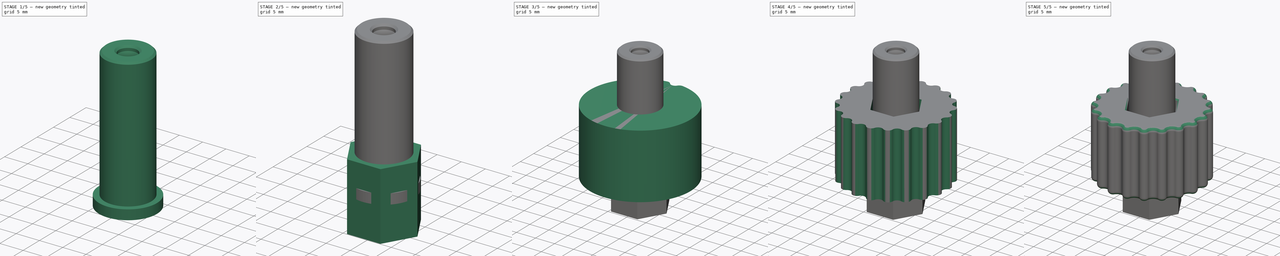
[diagram: build sequence overview — one tinted view per stage of 5, left to right]
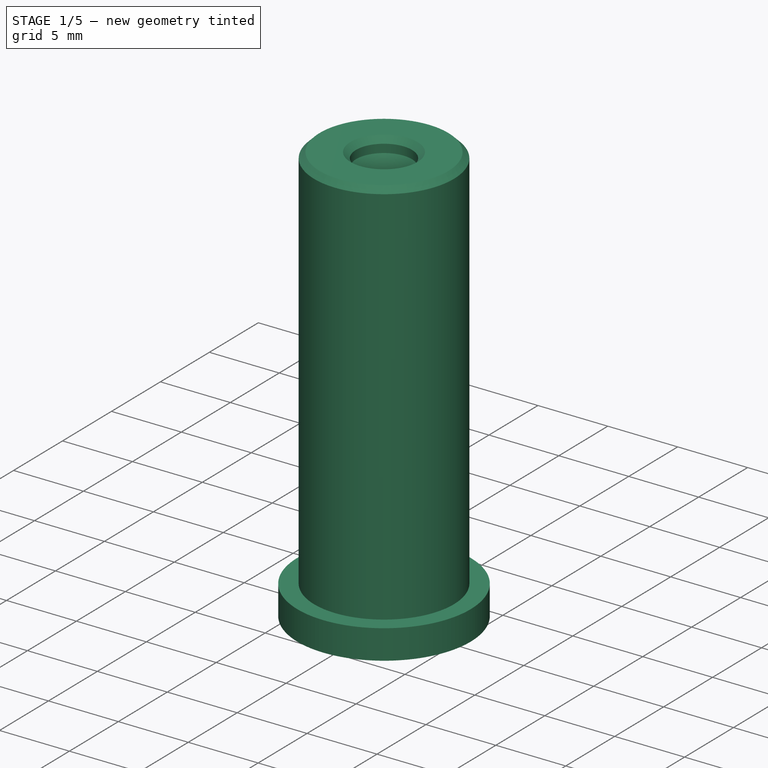
[diagram: stage 1 of 5 — iso view after this stage's code; geometry added in this stage tinted green]
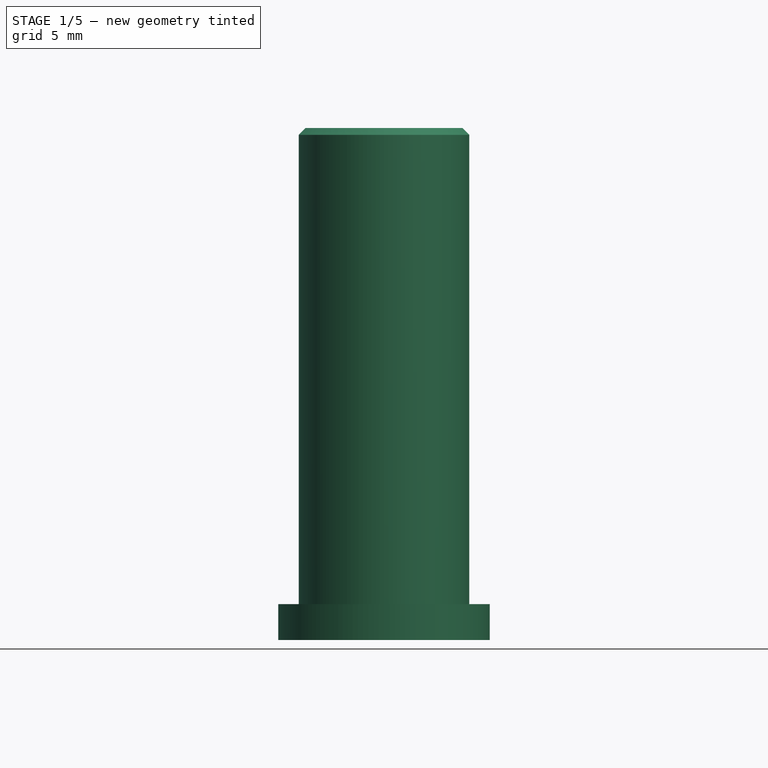
[diagram: stage 1 of 5 — front view after this stage's code; geometry added in this stage tinted green]
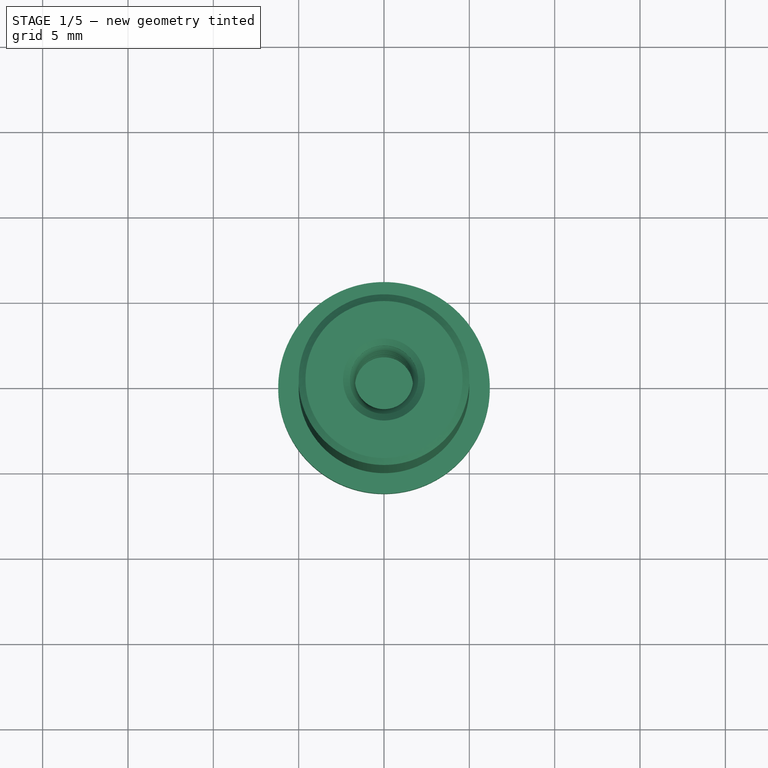
[diagram: stage 1 of 5 — top view after this stage's code; geometry added in this stage tinted green]
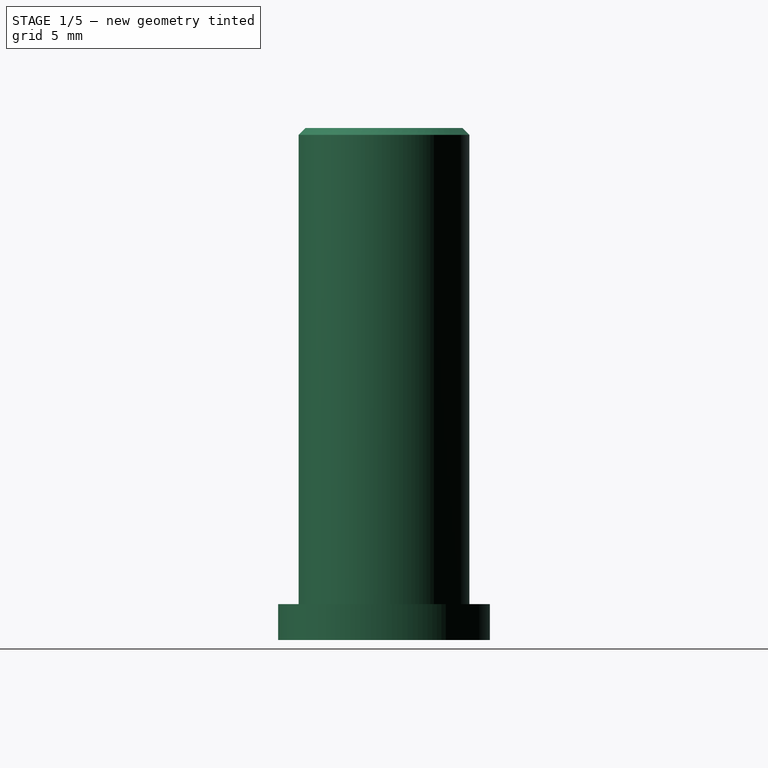
[diagram: stage 1 of 5 — right view after this stage's code; geometry added in this stage tinted green]
FCSTD DOCUMENT  (FreeCAD 0.21R33771 (Git))
Label: BowdenTerminal
License: All rights reserved
LicenseURL: http://en.wikipedia.org/wiki/All_rights_reserved
objects: Sketcher::SketchObject×13, PartDesign::Body×7, PartDesign::Revolution×5, PartDesign::Pad×4, PartDesign::Chamfer×4, PartDesign::Pocket×3, PartDesign::ShapeBinder×1, PartDesign::PolarPattern×1, PartDesign::Fillet×1
note: 56 computed .brp shape members not serialized (recipe doc carries the construction recipe); baked Part::Feature solids carry a one-line shape summary decoded from their .brp

FEATURE [PartDesign::Body] Body004  label="Joiner-M6-direct"
  Group = -> [Sketch008,Pad001,Sketch009,Chamfer001,Pad002,Sketch010,Pad003]
  Origin = -> Origin004
  Tip = -> Pad003
FEATURE [Sketcher::SketchObject] Sketch012
  FullyConstrained = true
  MapMode = 5
  Placement = pos=(0,0,0) rot=(0.57735,0.57735,0.57735;2.0944rad)
  Support = -> [YZ_Plane005]
  sketch-geometry (24):
    g0: LineSegment StartX=-2 StartY=30 StartZ=0 EndX=-5 EndY=30 EndZ=0
    g1: LineSegment StartX=-5 StartY=30 StartZ=0 EndX=-5 EndY=0 EndZ=0
    g2: LineSegment StartX=-5 StartY=0 StartZ=0 EndX=-2 EndY=0 EndZ=0
    g3: LineSegment StartX=-1.7 StartY=0 StartZ=0 EndX=-1.7 EndY=30 EndZ=0
    g4: LineSegment StartX=-2 StartY=0 StartZ=0 EndX=-2 EndY=1 EndZ=0
    g5: LineSegment StartX=-2 StartY=1 StartZ=0 EndX=-2 EndY=3.10713 EndZ=0
    g6: ArcOfCircle CenterX=-3.7 CenterY=2.05357 CenterZ=0 NormalX=0 NormalY=0 NormalZ=1 AngleXU=0 Radius=2 StartAngle=5.72837 EndAngle=6.838
    g7: LineSegment StartX=-5 StartY=15 StartZ=0 EndX=-1.7 EndY=15 EndZ=0
    g8: LineSegment StartX=-2 StartY=17.9253 StartZ=0 EndX=-2 EndY=12.0747 EndZ=0
    g9: ArcOfCircle CenterX=-3.7 CenterY=13.1282 CenterZ=0 NormalX=0 NormalY=0 NormalZ=1 AngleXU=0 Radius=2 StartAngle=5.72837 EndAngle=6.73421
    g10: LineSegment StartX=-1.9 StartY=14 StartZ=0 EndX=-1.9 EndY=16 EndZ=0
    g11: ArcOfCircle CenterX=-3.7 CenterY=16.8718 CenterZ=0 NormalX=0 NormalY=0 NormalZ=1 AngleXU=0 Radius=2 StartAngle=5.83216 EndAngle=6.838
    g12: LineSegment StartX=-1.7 StartY=16 StartZ=0 EndX=-2 EndY=16 EndZ=0
    g13: LineSegment StartX=-2 StartY=29 StartZ=0 EndX=-2 EndY=30 EndZ=0
    g14: LineSegment StartX=-2 StartY=26.8929 StartZ=0 EndX=-2 EndY=29 EndZ=0
    g15: ArcOfCircle CenterX=-3.7 CenterY=27.9464 CenterZ=0 NormalX=0 NormalY=0 NormalZ=1 AngleXU=0 Radius=2 StartAngle=5.72837 EndAngle=6.838
    g16: LineSegment StartX=-2 StartY=8.64446 StartZ=0 EndX=-2 EndY=12.0747 EndZ=0
    g17: LineSegment StartX=-2 StartY=3.10713 StartZ=0 EndX=-2 EndY=6.53733 EndZ=0
    g18: LineSegment StartX=-2 StartY=6.53733 StartZ=0 EndX=-2 EndY=8.64446 EndZ=0
    g19: ArcOfCircle CenterX=-3.7 CenterY=7.59089 CenterZ=0 NormalX=0 NormalY=0 NormalZ=1 AngleXU=0 Radius=2 StartAngle=5.72837 EndAngle=6.838
    g20: LineSegment StartX=-2 StartY=23.4627 StartZ=0 EndX=-2 EndY=26.8929 EndZ=0
    g21: LineSegment StartX=-2 StartY=17.9253 StartZ=0 EndX=-2 EndY=21.3555 EndZ=0
    g22: LineSegment StartX=-2 StartY=21.3555 StartZ=0 EndX=-2 EndY=23.4627 EndZ=0
    g23: ArcOfCircle CenterX=-3.7 CenterY=22.4091 CenterZ=0 NormalX=0 NormalY=0 NormalZ=1 AngleXU=0 Radius=2 StartAngle=5.72837 EndAngle=6.838
  constraints (74):
    c: Coincident(g0,g1)
    c: Coincident(g1,g2)
    c: Coincident(g2,g4)
    c: Coincident(g13,g0)
    c: Horizontal(g0)
    c: Horizontal(g2)
    c: Vertical(g1)
    c: DistanceX(g2,g-1) = 2
    c: DistanceX(g1,g-1) = 5
    c: DistanceY(g1,g1) = 30
    c: Vertical(g3)
    c: PointOnObject(g3,g0)
    c: PointOnObject(g3,g2)
    c: PointOnObject(g1,g-1)
    c: DistanceX(g2,g3) = 0.3
    c: Coincident(g4,g5)
    c: Vertical(g4)
    c: Coincident(g5,g17)
    c: Vertical(g5)
    c: Coincident(g6,g5)
    c: Coincident(g6,g4)
    c: Tangent(g6,g3)
    c: DistanceY(g4,g4) = 1
    c: Radius(g6) = 2
    c: PointOnObject(g7,g1)
    c: Horizontal(g7)
    c: Symmetric(g3,g3,g7)
    c: Coincident(g8,g21)
    c: Coincident(g8,g16)
    c: Vertical(g8)
    c: Coincident(g9,g16)
    c: Equal(g9,g6)
    c: Tangent(g9,g3)
    c: Coincident(g10,g9)
    c: Coincident(g11,g10)
    c: Coincident(g11,g21)
    c: Equal(g9,g11)
    c: Tangent(g11,g3)
    c: Symmetric(g9,g10,g7)
    c: DistanceY(g10,g10) = 2
    c: PointOnObject(g12,g3)
    c: PointOnObject(g12,g8)
    c: Horizontal(g12)
    c: Coincident(g14,g13)
    c: Vertical(g13)
    c: Coincident(g20,g14)
    c: Vertical(g14)
    c: Coincident(g15,g13)
    c: Coincident(g15,g20)
    c: Equal(g11,g15)
    c: Tangent(g15,g3)
    c: Equal(g13,g4)
    c: PointOnObject(g10,g12)
    c: DistanceX(g12,g10) = 0.1
    c: Coincident(g18,g16)
    c: Vertical(g16)
    c: Coincident(g17,g18)
    c: Vertical(g17)
    c: Vertical(g18)
    c: Coincident(g19,g16)
    c: Coincident(g19,g17)
    c: Tangent(g19,g3)
    c: Equal(g9,g19)
    c: Equal(g16,g17)
    c: Coincident(g22,g20)
    c: Vertical(g20)
    c: Coincident(g21,g22)
    c: Vertical(g21)
    c: Vertical(g22)
    c: Coincident(g23,g20)
    c: Coincident(g23,g21)
    c: Tangent(g23,g3)
    c: Equal(g15,g23)
    c: Equal(g20,g21)
FEATURE [PartDesign::Revolution] Revolution003
  Angle = 360
  Axis = (-2e-16,3e-16,1)
  Base = (0,0,0)
  Placement = pos=(0,0,0) rot=(0.57735,0.57735,0.57735;2.0944rad)
  Profile = -> Sketch012
  ReferenceAxis = -> Sketch012 [V_Axis]
FEATURE [PartDesign::Chamfer] Chamfer002
  Angle = 45
  Base = -> Revolution003 [Face3,Face1]
  BaseFeature = -> Revolution003
  ChamferType = 0
  FlipDirection = false
  Placement = pos=(0,0,0) rot=(0.57735,0.57735,0.57735;2.0944rad)
  Size = 0.4
  Size2 = 1
  SupportTransform = false
  UseAllEdges = false
FEATURE [PartDesign::Body] Body005  label="Joiner-tube-4mm"
  Group = -> [Sketch012,Revolution003,Chamfer002]
  Origin = -> Origin005
  Tip = -> Chamfer002
FEATURE [Sketcher::SketchObject] Sketch013
  FullyConstrained = true
  MapMode = 5
  Placement = pos=(0,0,0) rot=(0.57735,0.57735,0.57735;2.0944rad)
  Support = -> [YZ_Plane006]
  sketch-geometry (6):
    g0: LineSegment StartX=0 StartY=0 StartZ=0 EndX=-6.2 EndY=0 EndZ=0
    g1: LineSegment StartX=-6.2 StartY=0 StartZ=0 EndX=-6.2 EndY=2.1 EndZ=0
    g2: LineSegment StartX=-6.2 StartY=2.1 StartZ=0 EndX=-3.2 EndY=2.1 EndZ=0
    g3: LineSegment StartX=-3.2 StartY=2.1 StartZ=0 EndX=-3.2 EndY=7.1 EndZ=0
    g4: LineSegment StartX=-3.2 StartY=7.1 StartZ=0 EndX=0 EndY=7.1 EndZ=0
    g5: LineSegment StartX=0 StartY=7.1 StartZ=0 EndX=0 EndY=0 EndZ=0
  constraints (17):
    c: Horizontal(g0)
    c: Coincident(g0,g1)
    c: Vertical(g1)
    c: Coincident(g1,g2)
    c: Horizontal(g2)
    c: Coincident(g2,g3)
    c: Vertical(g3)
    c: Coincident(g3,g4)
    c: Horizontal(g4)
    c: Coincident(g4,g5)
    c: Coincident(g5,g0)
    c: Vertical(g5)
    c: DistanceX(g4,g4) = 3.2
    c: DistanceX(g1,g3) = 3
    c: DistanceY(g1,g1) = 2.1
    c: DistanceY(g1,g3) = 5
    c: Coincident(g0,g-1)
FEATURE [PartDesign::Revolution] Revolution004
  Angle = 360
  Axis = (-2e-16,3e-16,1)
  Base = (0,0,0)
  Placement = pos=(0,0,0) rot=(0.57735,0.57735,0.57735;2.0944rad)
  Profile = -> Sketch013
  ReferenceAxis = -> Sketch013 [V_Axis]
FEATURE [PartDesign::Chamfer] Chamfer003
  Angle = 45
  Base = -> Revolution004 [Face5]
  BaseFeature = -> Revolution004
  ChamferType = 0
  FlipDirection = false
  Placement = pos=(0,0,0) rot=(0.57735,0.57735,0.57735;2.0944rad)
  Size = 1
  Size2 = 1
  SupportTransform = false
  UseAllEdges = false
FEATURE [PartDesign::Body] Body006  label="Plug-6mm"
  Group = -> [Sketch013,Revolution004,Chamfer003]
  Origin = -> Origin006
  Tip = -> Chamfer003
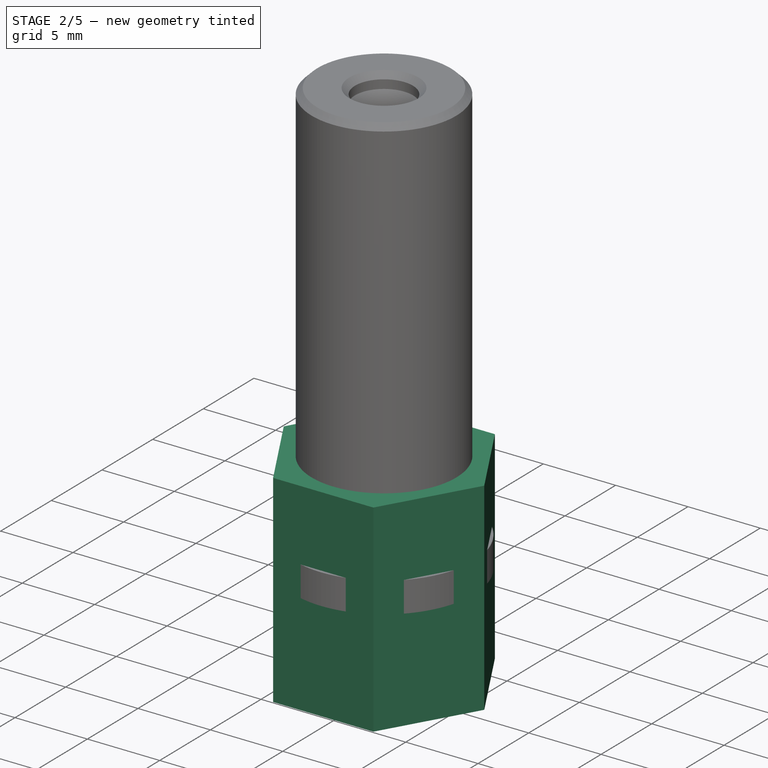
[diagram: stage 2 of 5 — iso view after this stage's code; geometry added in this stage tinted green]
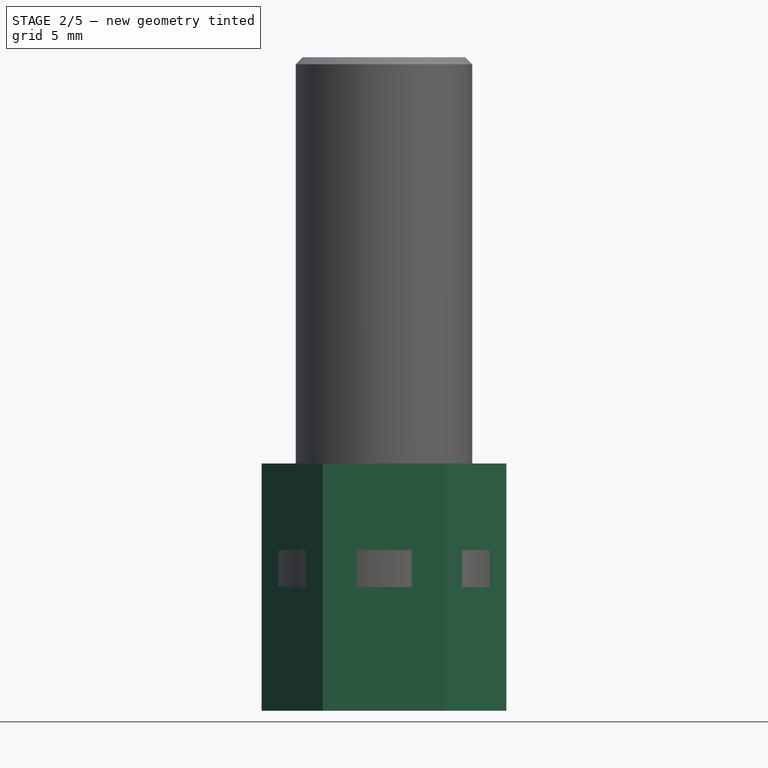
[diagram: stage 2 of 5 — front view after this stage's code; geometry added in this stage tinted green]
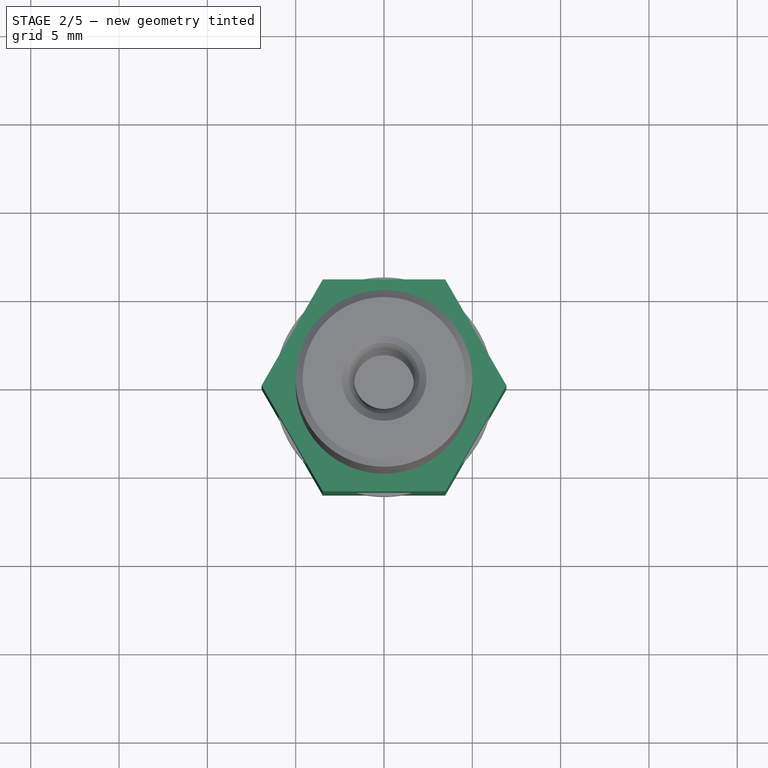
[diagram: stage 2 of 5 — top view after this stage's code; geometry added in this stage tinted green]
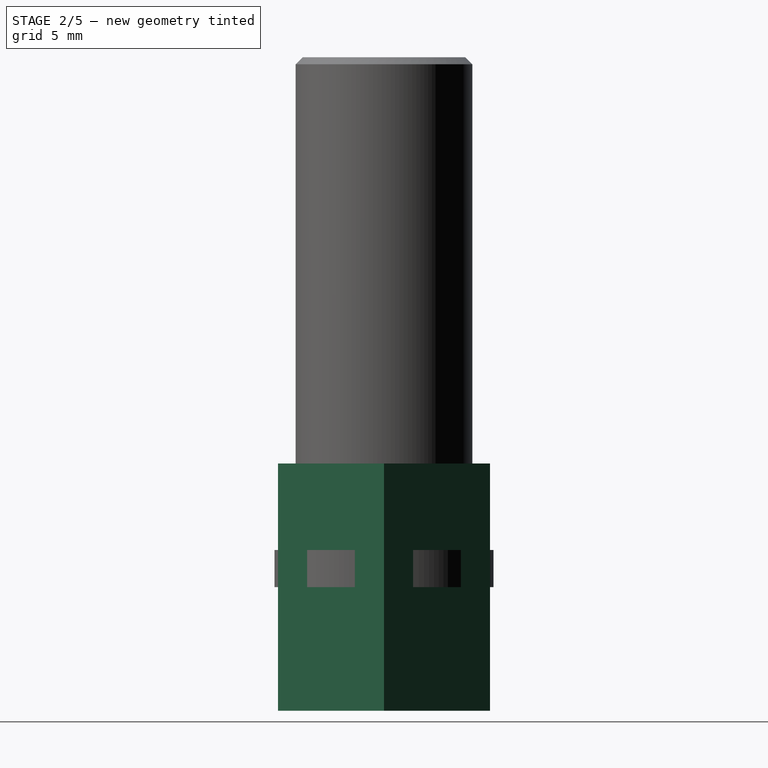
[diagram: stage 2 of 5 — right view after this stage's code; geometry added in this stage tinted green]
FEATURE [PartDesign::Body] Body001  label="M5-Insert"
  Group = -> [Sketch001,Revolution001]
  Origin = -> Origin001
  Tip = -> Revolution001
FEATURE [Sketcher::SketchObject] Sketch008
  FullyConstrained = true
  MapMode = 5
  Support = -> [XY_Plane004]
  sketch-geometry (8):
    g0: LineSegment StartX=3.4641 StartY=6 StartZ=0 EndX=-3.4641 EndY=6 EndZ=0
    g1: LineSegment StartX=-3.4641 StartY=6 StartZ=0 EndX=-6.9282 EndY=-1.74598e-11 EndZ=0
    g2: LineSegment StartX=-6.9282 StartY=-1.74598e-11 StartZ=0 EndX=-3.4641 EndY=-6 EndZ=0
    g3: LineSegment StartX=-3.4641 StartY=-6 StartZ=0 EndX=3.4641 EndY=-6 EndZ=0
    g4: LineSegment StartX=3.4641 StartY=-6 StartZ=0 EndX=6.9282 EndY=1.20428e-11 EndZ=0
    g5: LineSegment StartX=6.9282 StartY=1.20428e-11 StartZ=0 EndX=3.4641 EndY=6 EndZ=0
    g6: Circle CenterX=3.3758e-12 CenterY=-2.0107e-12 CenterZ=0 NormalX=0 NormalY=0 NormalZ=1 AngleXU=0 Radius=6.9282
    g7: Circle CenterX=3.3758e-12 CenterY=-2.0107e-12 CenterZ=0 NormalX=0 NormalY=0 NormalZ=1 AngleXU=0 Radius=3
  constraints (18):
    c: Coincident(g0,g1)
    c: Coincident(g1,g2)
    c: Coincident(g2,g3)
    c: Coincident(g3,g4)
    c: Coincident(g4,g5)
    c: Coincident(g5,g0)
    c: Equal(g0, g1-g5) x5
    c: PointOnObject(g0,g6)
    c: PointOnObject(g1,g6)
    c: PointOnObject(g2,g6)
    c: PointOnObject(g3,g6)
    c: PointOnObject(g4,g6)
    c: PointOnObject(g5,g6)
    c: Coincident(g6,g-1)
    c: Horizontal(g0)
    c: Coincident(g7,g6)
    c: Radius(g7) = 3
    c: DistanceY(g3,g0) = 12
FEATURE [PartDesign::Pad] Pad001
  Direction = (0,0,1)
  Length = 14
  Length2 = 10
  Midplane = true
  Profile = -> Sketch008
  ReferenceAxis = -> Sketch008 [N_Axis]
  Type = 0
FEATURE [Sketcher::SketchObject] Sketch009
  FullyConstrained = true
  MapMode = 5
  Support = -> [XY_Plane004]
  sketch-geometry (2):
    g0: Circle CenterX=0 CenterY=0 CenterZ=0 NormalX=0 NormalY=0 NormalZ=1 AngleXU=0 Radius=2.3
    g1: Circle CenterX=0 CenterY=0 CenterZ=0 NormalX=0 NormalY=0 NormalZ=1 AngleXU=0 Radius=3
  constraints (4):
    c: Coincident(g0,g-1)
    c: Coincident(g1,g0)
    c: Radius(g0) = 2.3
    c: Radius(g1) = 3
FEATURE [PartDesign::Chamfer] Chamfer001
  Angle = 45
  Base = -> Pad001 [Edge21,Edge20]
  BaseFeature = -> Pad001
  ChamferType = 0
  FlipDirection = false
  Size = 0.8
  Size2 = 1
  SupportTransform = false
  UseAllEdges = false
FEATURE [PartDesign::Pad] Pad002
  BaseFeature = -> Chamfer001
  Direction = (0,0,1)
  Length = 4
  Length2 = 10
  Midplane = true
  Profile = -> Sketch009
  ReferenceAxis = -> Sketch009 [N_Axis]
  Type = 0
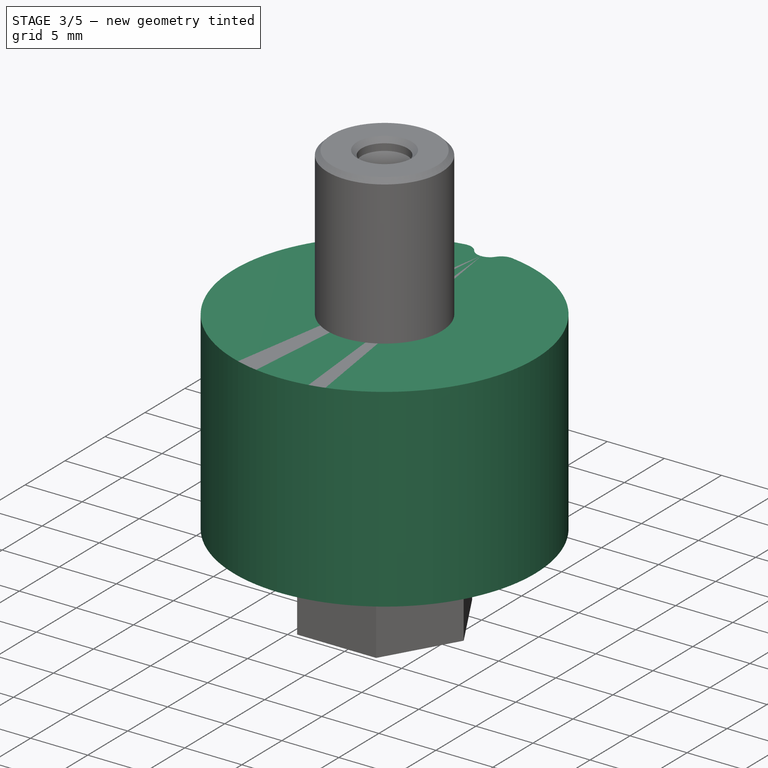
[diagram: stage 3 of 5 — iso view after this stage's code; geometry added in this stage tinted green]
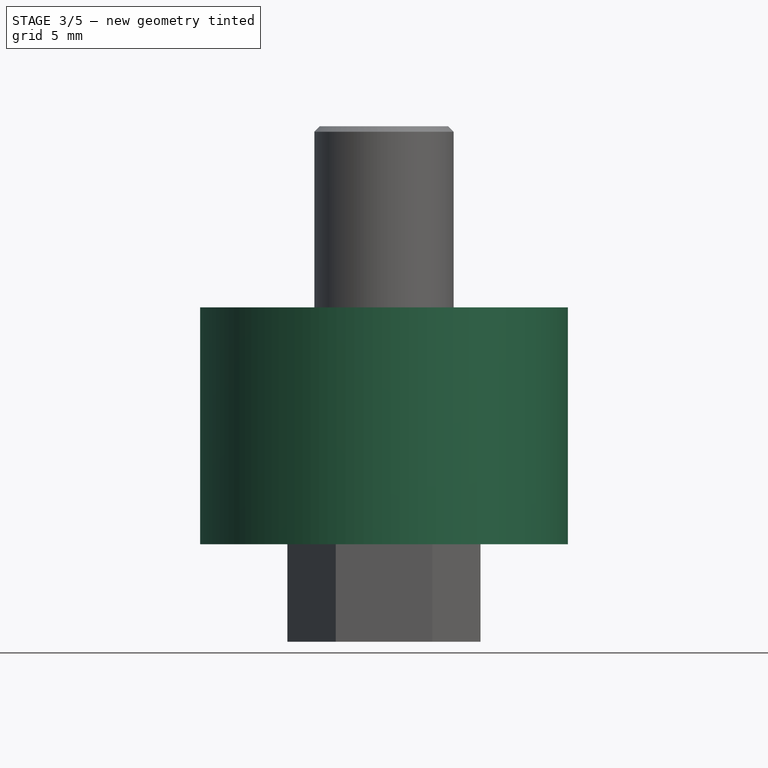
[diagram: stage 3 of 5 — front view after this stage's code; geometry added in this stage tinted green]
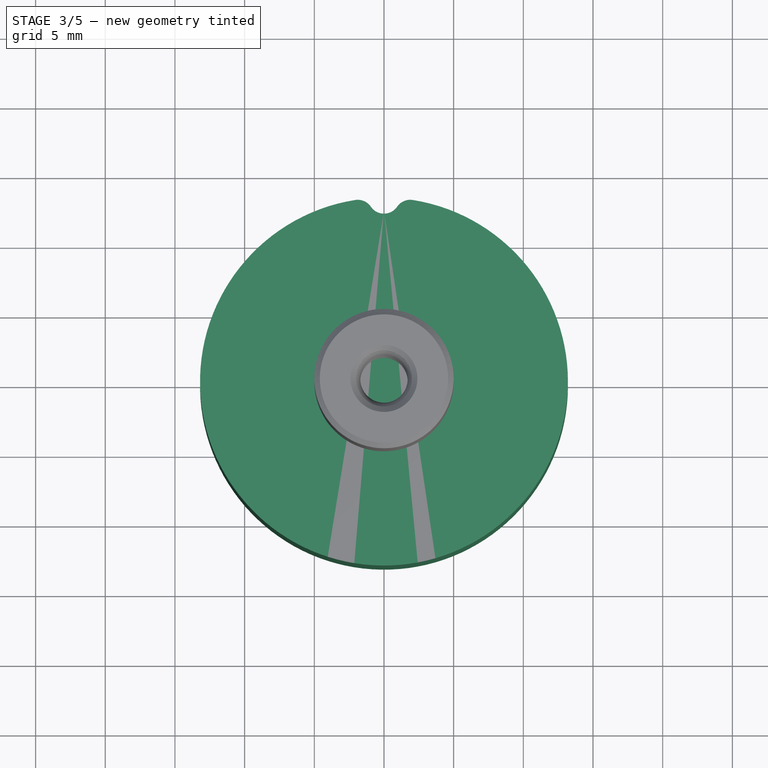
[diagram: stage 3 of 5 — top view after this stage's code; geometry added in this stage tinted green]
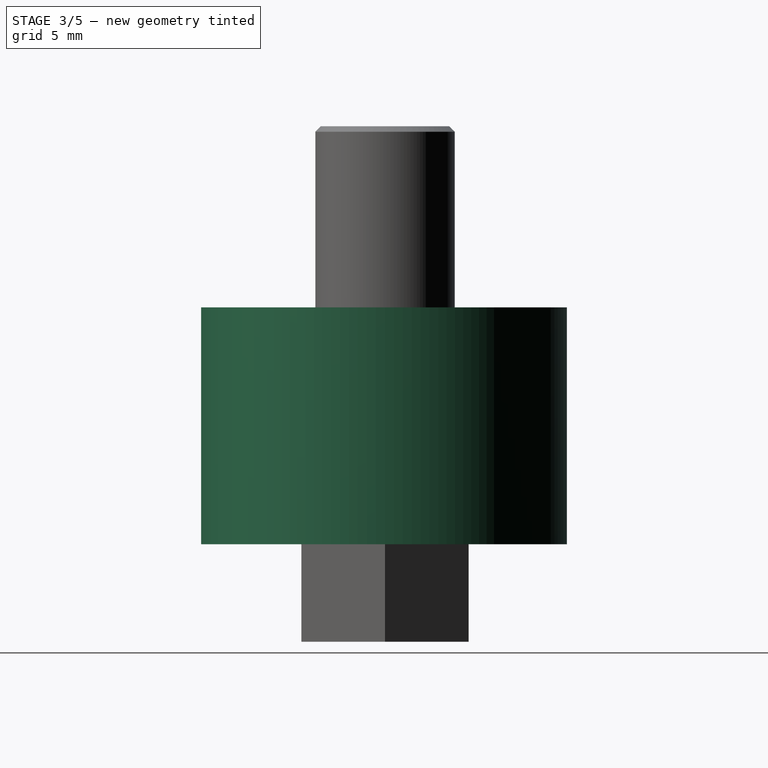
[diagram: stage 3 of 5 — right view after this stage's code; geometry added in this stage tinted green]
FEATURE [PartDesign::Body] Body002  label="M6-Direct"
  Group = -> [Sketch002,Revolution002]
  Origin = -> Origin002
  Tip = -> Revolution002
FEATURE [PartDesign::ShapeBinder] ShapeBinder
  Placement = pos=(0,0,0) rot=(1,0,0;1.5708rad)
  Support = -> [Sketch]
  TraceSupport = false
FEATURE [Sketcher::SketchObject] Sketch003  label="T_Template"
  ExternalGeometry = -> [ShapeBinder]
  FullyConstrained = true
  MapMode = 5
  Support = -> [XY_Plane003]
  sketch-geometry (11):
    g0: Circle CenterX=-7.649e-13 CenterY=3.192e-13 CenterZ=0 NormalX=0 NormalY=0 NormalZ=1 AngleXU=0 Radius=8.2
    g1: LineSegment StartX=-7.9 StartY=-2.9e-15 StartZ=0 EndX=-8.2 EndY=-2.9e-15 EndZ=0
    g2: Circle CenterX=-7.649e-13 CenterY=3.192e-13 CenterZ=0 NormalX=0 NormalY=0 NormalZ=1 AngleXU=0 Radius=13.2
    g3: LineSegment StartX=-8.2 StartY=-2.9e-15 StartZ=0 EndX=-13.2 EndY=-2.9e-15 EndZ=0
    g4: LineSegment StartX=3.03109 StartY=5.25 StartZ=0 EndX=-3.03109 EndY=5.25 EndZ=0
    g5: LineSegment StartX=-3.03109 StartY=5.25 StartZ=0 EndX=-6.06218 EndY=2.8999e-12 EndZ=0
    g6: LineSegment StartX=-6.06218 StartY=2.8999e-12 StartZ=0 EndX=-3.03109 EndY=-5.25 EndZ=0
    g7: LineSegment StartX=-3.03109 StartY=-5.25 StartZ=0 EndX=3.03109 EndY=-5.25 EndZ=0
    g8: LineSegment StartX=3.03109 StartY=-5.25 StartZ=0 EndX=6.06218 EndY=-2.0437e-12 EndZ=0
    g9: LineSegment StartX=6.06218 StartY=-2.0437e-12 StartZ=0 EndX=3.03109 EndY=5.25 EndZ=0
    g10: Circle CenterX=-7.649e-13 CenterY=3.192e-13 CenterZ=0 NormalX=0 NormalY=0 NormalZ=1 AngleXU=0 Radius=6.06218
  constraints (26):
    c: Coincident(g0,g-1)
    c: Coincident(g1,g-3)
    c: PointOnObject(g1,g0)
    c: Horizontal(g1)
    c: DistanceX(g1,g1) = 0.3
    c: Coincident(g2,g0)
    c: Coincident(g3,g1)
    c: PointOnObject(g3,g2)
    c: Horizontal(g3)
    c: DistanceX(g3,g3) = 5
    c: Coincident(g4,g5)
    c: Coincident(g5,g6)
    c: Coincident(g6,g7)
    c: Coincident(g7,g8)
    c: Coincident(g8,g9)
    c: Coincident(g9,g4)
    c: Equal(g4, g5-g9) x5
    c: PointOnObject(g4,g10)
    c: PointOnObject(g5,g10)
    c: PointOnObject(g6,g10)
    c: PointOnObject(g7,g10)
    c: PointOnObject(g8,g10)
    c: PointOnObject(g9,g10)
    c: Coincident(g10,g0)
    c: DistanceY(g7,g4) = 10.5
    c: Horizontal(g4)
FEATURE [Sketcher::SketchObject] Sketch004
  ExternalGeometry = -> [Sketch003]
  FullyConstrained = true
  MapMode = 5
  Support = -> [XY_Plane003]
  sketch-geometry (1):
    g0: Circle CenterX=0 CenterY=0 CenterZ=0 NormalX=0 NormalY=0 NormalZ=1 AngleXU=0 Radius=13.2
  constraints (2):
    c: Coincident(g0,g-3)
    c: Equal(g0,g-3)
FEATURE [PartDesign::Pad] Pad
  Direction = (0,0,1)
  Length = 17
  Length2 = 10
  Profile = -> Sketch004
  ReferenceAxis = -> Sketch004 [N_Axis]
  Type = 0
FEATURE [Sketcher::SketchObject] Sketch005
  AttachmentOffset = pos=(0,0,4) rot=(0,0,1;0rad)
  ExternalGeometry = -> [Sketch003]
  FullyConstrained = true
  MapMode = 5
  Placement = pos=(0,0,4) rot=(0,0,1;0rad)
  Support = -> [XY_Plane003]
  sketch-geometry (1):
    g0: Circle CenterX=0 CenterY=0 CenterZ=0 NormalX=0 NormalY=0 NormalZ=1 AngleXU=0 Radius=8.2
  constraints (2):
    c: Coincident(g0,g-3)
    c: Equal(g-3,g0)
FEATURE [Sketcher::SketchObject] Sketch006
  AttachmentOffset = pos=(0,0,17) rot=(0,0,1;0rad)
  ExternalGeometry = -> [Sketch003]
  FullyConstrained = true
  MapMode = 5
  Placement = pos=(0,0,17) rot=(0,0,1;0rad)
  Support = -> [XY_Plane003]
  expr: .AttachmentOffset.Base.z = <<Pad>>.Length
  sketch-geometry (7):
    g0: LineSegment StartX=3.03109 StartY=5.25 StartZ=0 EndX=-3.03109 EndY=5.25 EndZ=0
    g1: LineSegment StartX=-3.03109 StartY=5.25 StartZ=0 EndX=-6.06218 EndY=9.344e-13 EndZ=0
    g2: LineSegment StartX=-6.06218 StartY=9.344e-13 StartZ=0 EndX=-3.03109 EndY=-5.25 EndZ=0
    g3: LineSegment StartX=-3.03109 StartY=-5.25 StartZ=0 EndX=3.03109 EndY=-5.25 EndZ=0
    g4: LineSegment StartX=3.03109 StartY=-5.25 StartZ=0 EndX=6.06218 EndY=-6.146e-13 EndZ=0
    g5: LineSegment StartX=6.06218 StartY=-6.146e-13 StartZ=0 EndX=3.03109 EndY=5.25 EndZ=0
    g6: Circle CenterX=7.15e-14 CenterY=1.166e-13 CenterZ=0 NormalX=0 NormalY=0 NormalZ=1 AngleXU=0 Radius=6.06218
  constraints (15):
    c: Coincident(g0,g1)
    c: Coincident(g1,g2)
    c: Coincident(g2,g3)
    c: Coincident(g3,g4)
    c: Coincident(g4,g5)
    c: Coincident(g5,g0)
    c: Equal(g0, g1-g5) x5
    c: PointOnObject(g0,g6)
    c: PointOnObject(g1,g6)
    c: PointOnObject(g2,g6)
    c: PointOnObject(g3,g6)
    c: PointOnObject(g4,g6)
    c: PointOnObject(g5,g6)
    c: Coincident(g6,g-1)
    c: Coincident(g5,g-3)
FEATURE [Sketcher::SketchObject] Sketch007
  AttachmentOffset = pos=(0,0,17) rot=(0,0,1;0rad)
  ExternalGeometry = -> [Sketch003]
  FullyConstrained = true
  MapMode = 5
  Placement = pos=(0,0,17) rot=(0,0,1;0rad)
  Support = -> [XY_Plane003]
  expr: .AttachmentOffset.Base.z = <<Pad>>.Length
  expr: Constraints[15] = 360 / 20
  sketch-geometry (6):
    g0: ArcOfCircle CenterX=0 CenterY=13.2 CenterZ=0 NormalX=0 NormalY=0 NormalZ=1 AngleXU=0 Radius=1.14293 StartAngle=3.74195 EndAngle=5.68283
    g1: ArcOfCircle CenterX=-1.88614 CenterY=11.9086 CenterZ=0 NormalX=0 NormalY=0 NormalZ=1 AngleXU=0 Radius=1.14293 StartAngle=0.60036 EndAngle=1.72788
    g2: ArcOfCircle CenterX=1.88614 CenterY=11.9086 CenterZ=0 NormalX=0 NormalY=0 NormalZ=1 AngleXU=0 Radius=1.14293 StartAngle=1.41372 EndAngle=2.54123
    g3: ArcOfCircle CenterX=-6.55e-14 CenterY=12.0571 CenterZ=0 NormalX=0 NormalY=0 NormalZ=1 AngleXU=0 Radius=2.28586 StartAngle=0.44328 EndAngle=2.69831
    g4: LineSegment StartX=-2.06493 StartY=13.0375 StartZ=0 EndX=-7.647e-13 EndY=2.002e-12 EndZ=0
    g5: LineSegment StartX=-7.647e-13 StartY=2.002e-12 StartZ=0 EndX=2.06493 EndY=13.0375 EndZ=0
  constraints (16):
    c: PointOnObject(g0,g-2)
    c: PointOnObject(g0,g-3)
    c: Tangent(g0,g1) = 1.5708
    c: Tangent(g0,g2) = 1.5708
    c: Equal(g2,g1)
    c: Tangent(g1,g-3) = -1.5708
    c: Tangent(g2,g-3) = -1.5708
    c: PointOnObject(g3,g0)
    c: Coincident(g3,g1)
    c: Coincident(g3,g2)
    c: Equal(g0,g1)
    c: Coincident(g4,g1)
    c: Coincident(g4,g-3)
    c: Coincident(g5,g4)
    c: Coincident(g5,g2)
    c: Angle(g5,g4) = 0.314159
FEATURE [PartDesign::Pocket] Pocket002
  BaseFeature = -> Pad
  Direction = (0,0,-1)
  Length = 5
  Length2 = 5
  Profile = -> Sketch007
  ReferenceAxis = -> Sketch007 [N_Axis]
  Type = 1
FEATURE [PartDesign::Body] Body003  label="Tool"
  Group = -> [ShapeBinder,Sketch003,Sketch004,Pad,Sketch005,Sketch007,Pocket002,PolarPattern,Pocket,Sketch006,Pocket001,Fillet,Chamfer]
  Origin = -> Origin003
  Tip = -> Chamfer
FEATURE [Sketcher::SketchObject] Sketch001
  FullyConstrained = true
  MapMode = 5
  Placement = pos=(0,0,0) rot=(1,0,0;1.5708rad)
  Support = -> [XZ_Plane001]
  sketch-geometry (12):
    g0: LineSegment StartX=-3 StartY=-4.4e-15 StartZ=0 EndX=-7.9 EndY=4.29e-14 EndZ=0
    g1: LineSegment StartX=-7.9 StartY=4.29e-14 StartZ=0 EndX=-7.9 EndY=4 EndZ=0
    g2: LineSegment StartX=-7.9 StartY=4 StartZ=0 EndX=-5.95 EndY=4 EndZ=0
    g3: LineSegment StartX=-5.95 StartY=4 StartZ=0 EndX=-5.95 EndY=10.1 EndZ=0
    g4: LineSegment StartX=-5.95 StartY=10.1 StartZ=0 EndX=-7.9 EndY=10.1 EndZ=0
    g5: LineSegment StartX=-7.9 StartY=10.1 StartZ=0 EndX=-7.9 EndY=13 EndZ=0
    g6: LineSegment StartX=-7.9 StartY=13 StartZ=0 EndX=-3.1 EndY=13 EndZ=0
    g7: LineSegment StartX=-3.1 StartY=13 StartZ=0 EndX=-3.1 EndY=6.5 EndZ=0
    g8: LineSegment StartX=-3.1 StartY=6.5 StartZ=0 EndX=-1.25 EndY=6.5 EndZ=0
    g9: LineSegment StartX=-1.25 StartY=6.5 StartZ=0 EndX=-1.25 EndY=4.7 EndZ=0
    g10: LineSegment StartX=-1.49246 StartY=3.5185 StartZ=0 EndX=-3 EndY=-4.4e-15 EndZ=0
    g11: ArcOfCircle CenterX=-4.25 CenterY=4.7 CenterZ=0 NormalX=0 NormalY=0 NormalZ=1 AngleXU=0 Radius=3 StartAngle=5.87839 EndAngle=6.28319
  constraints (35):
    c: PointOnObject(g0,g-1)
    c: PointOnObject(g0,g-1)
    c: Coincident(g1,g0)
    c: Vertical(g1)
    c: Coincident(g2,g1)
    c: Horizontal(g2)
    c: Coincident(g3,g2)
    c: Vertical(g3)
    c: Coincident(g4,g3)
    c: Horizontal(g4)
    c: Coincident(g5,g4)
    c: Vertical(g5)
    c: Coincident(g6,g5)
    c: Horizontal(g6)
    c: Coincident(g7,g6)
    c: Vertical(g7)
    c: Coincident(g8,g7)
    c: Horizontal(g8)
    c: Coincident(g9,g8)
    c: Coincident(g10,g0)
    c: PointOnObject(g4,g1)
    c: DistanceX(g0,g-1) = 7.9
    c: DistanceY(g1,g1) = 4
    c: DistanceY(g1,g4) = 6.1
    c: DistanceY(g5,g5) = 2.9
    c: DistanceX(g6,g-1) = 3.1
    c: DistanceY(g8,g6) = 6.5
    c: DistanceX(g2,g-1) = 5.95
    c: Vertical(g9)
    c: DistanceX(g8,g-1) = 1.25
    c: DistanceX(g0,g-1) = 3
    c: Tangent(g9,g11) = 1.5708
    c: Tangent(g10,g11) = 1.5708
    c: Radius(g11) = 3
    c: DistanceY(g9,g8) = 1.8
FEATURE [PartDesign::Revolution] Revolution001
  Angle = 360
  Axis = (0,-2e-16,1)
  Base = (0,0,0)
  Placement = pos=(0,0,0) rot=(1,0,0;1.5708rad)
  Profile = -> Sketch001
  ReferenceAxis = -> Sketch001 [V_Axis]
FEATURE [Sketcher::SketchObject] Sketch010
  AttachmentOffset = pos=(0,0,-2) rot=(0,0,1;0rad)
  FullyConstrained = true
  MapMode = 5
  Placement = pos=(0,0,-2) rot=(0,0,1;0rad)
  Support = -> [XY_Plane004]
  sketch-geometry (1):
    g0: Circle CenterX=0 CenterY=0 CenterZ=0 NormalX=0 NormalY=0 NormalZ=1 AngleXU=0 Radius=3
  constraints (2):
    c: Coincident(g0,g-1)
    c: Radius(g0) = 3
FEATURE [PartDesign::Pad] Pad003
  BaseFeature = -> Pad002
  Direction = (0,0,1)
  Length = 0.15
  Length2 = 10
  Profile = -> Sketch010
  ReferenceAxis = -> Sketch010 [N_Axis]
  Type = 0
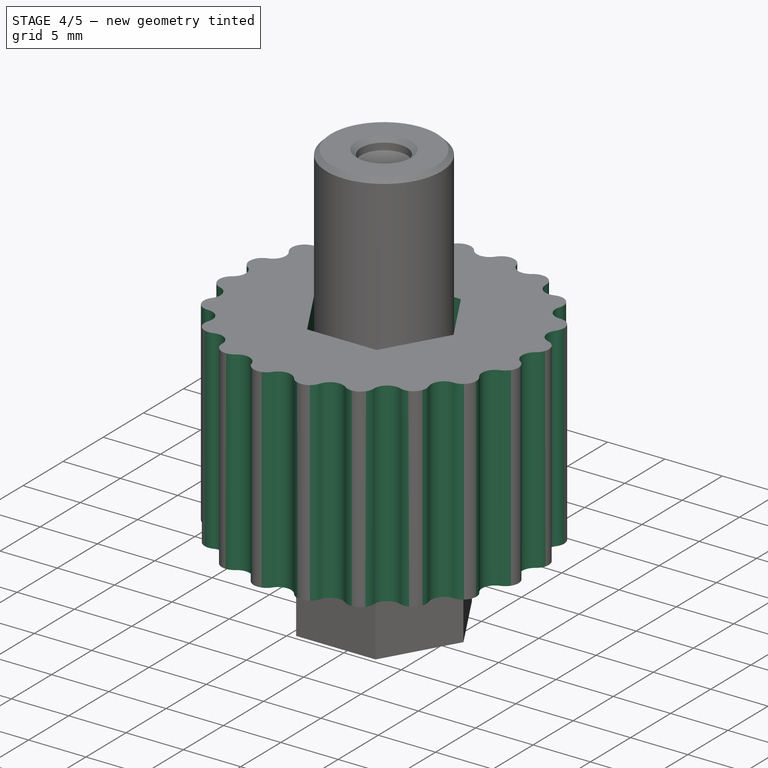
[diagram: stage 4 of 5 — iso view after this stage's code; geometry added in this stage tinted green]
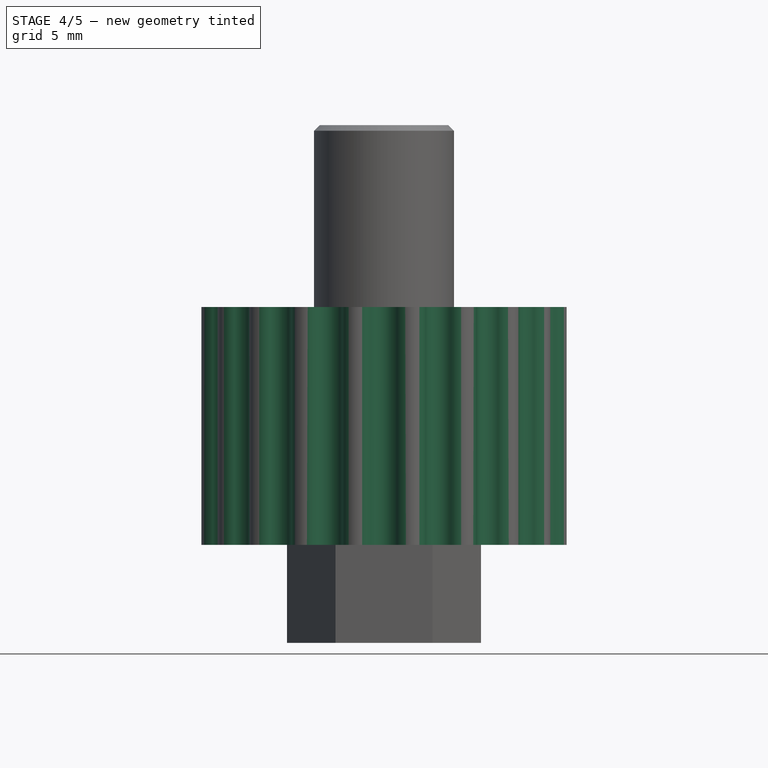
[diagram: stage 4 of 5 — front view after this stage's code; geometry added in this stage tinted green]
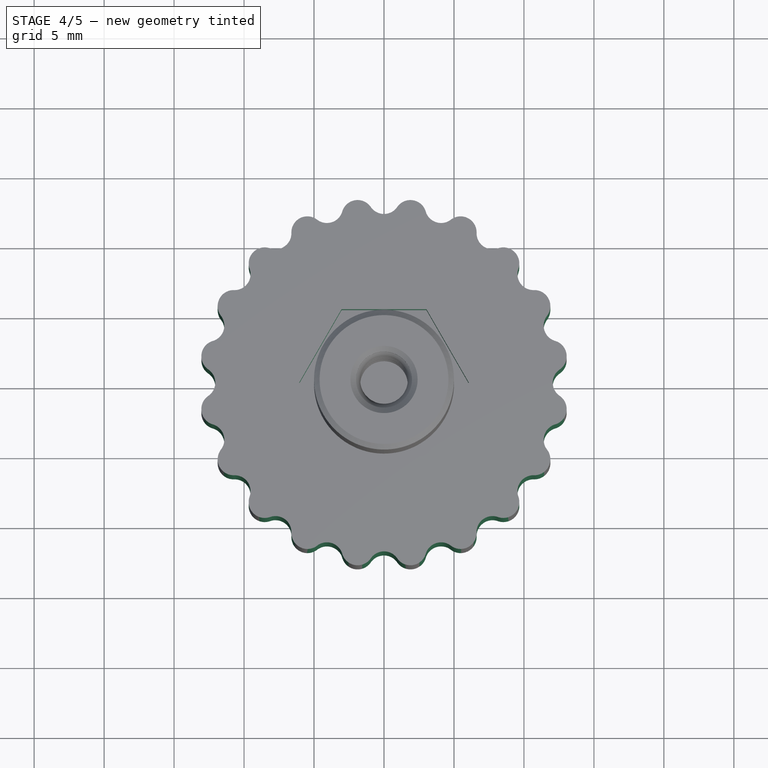
[diagram: stage 4 of 5 — top view after this stage's code; geometry added in this stage tinted green]
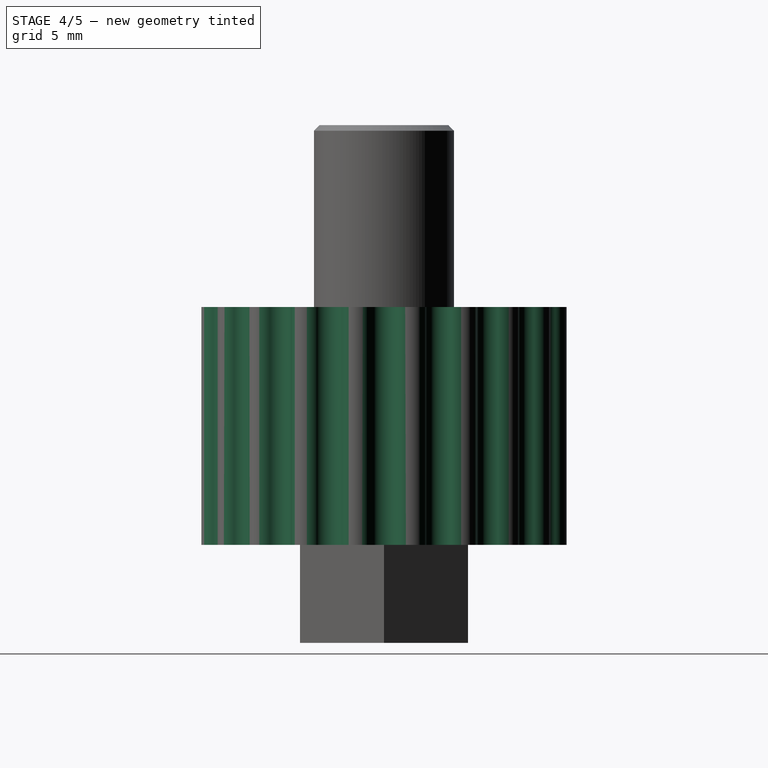
[diagram: stage 4 of 5 — right view after this stage's code; geometry added in this stage tinted green]
FEATURE [PartDesign::PolarPattern] PolarPattern
  Angle = 360
  Axis = -> Sketch007 [N_Axis]
  BaseFeature = -> Pocket002
  Occurrences = 20
  Originals = -> [Pocket002]
FEATURE [PartDesign::Pocket] Pocket
  BaseFeature = -> PolarPattern
  Direction = (0,0,-1)
  Length = 5
  Length2 = 5
  Profile = -> Sketch005
  ReferenceAxis = -> Sketch005 [N_Axis]
  Type = 1
FEATURE [PartDesign::Pocket] Pocket001
  BaseFeature = -> Pocket
  Direction = (0,0,-1)
  Length = 5
  Length2 = 5
  Profile = -> Sketch006
  ReferenceAxis = -> Sketch006 [N_Axis]
  Type = 1
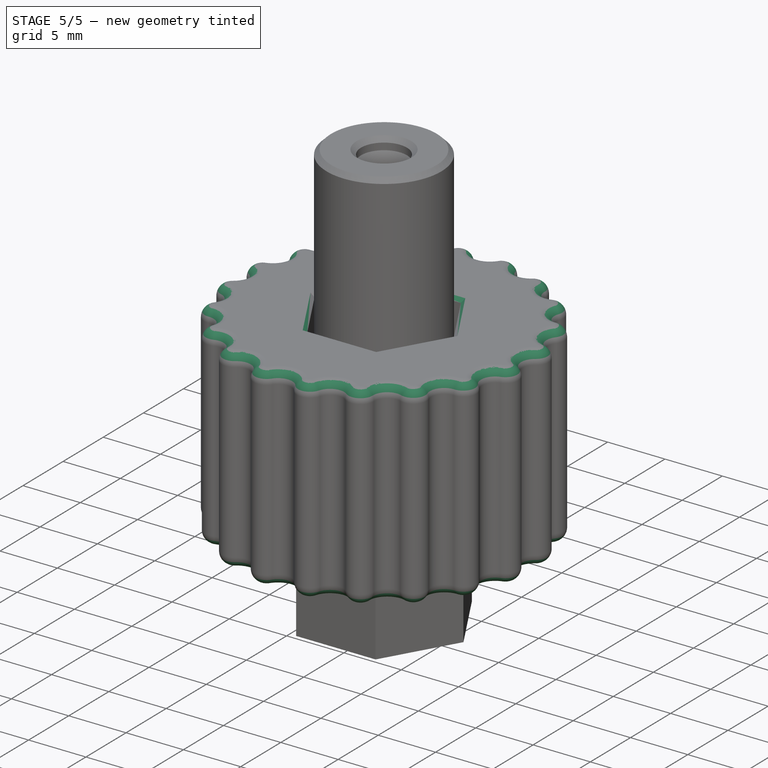
[diagram: stage 5 of 5 — iso view after this stage's code; geometry added in this stage tinted green]
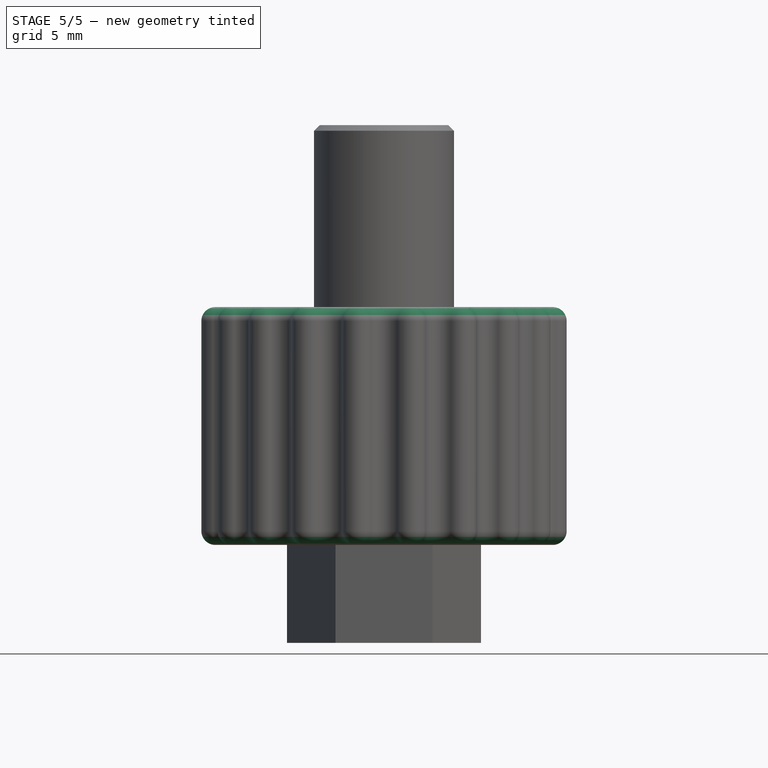
[diagram: stage 5 of 5 — front view after this stage's code; geometry added in this stage tinted green]
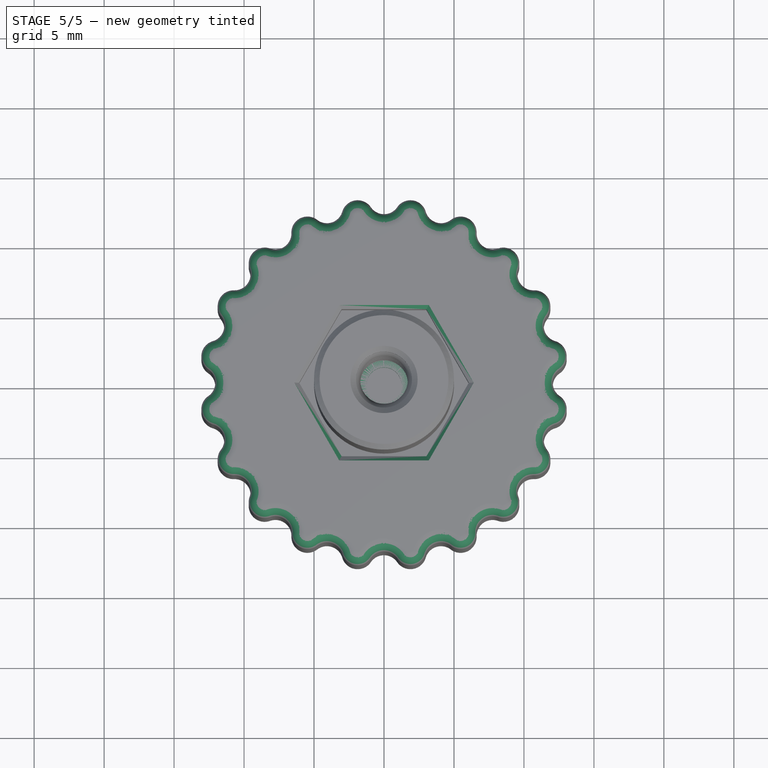
[diagram: stage 5 of 5 — top view after this stage's code; geometry added in this stage tinted green]
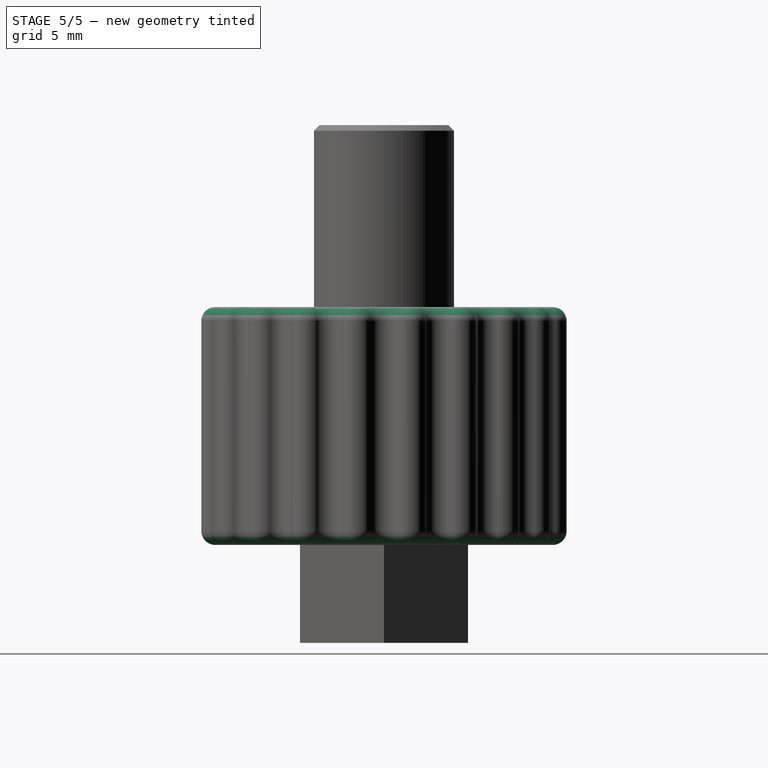
[diagram: stage 5 of 5 — right view after this stage's code; geometry added in this stage tinted green]
FEATURE [Sketcher::SketchObject] Sketch
  FullyConstrained = true
  MapMode = 5
  Placement = pos=(0,0,0) rot=(1,0,0;1.5708rad)
  Support = -> [XZ_Plane]
  sketch-geometry (12):
    g0: LineSegment StartX=-3 StartY=-1.6378e-12 StartZ=0 EndX=-7.9 EndY=3.12727e-11 EndZ=0
    g1: LineSegment StartX=-7.9 StartY=3.12727e-11 StartZ=0 EndX=-7.9 EndY=4 EndZ=0
    g2: LineSegment StartX=-7.9 StartY=4 StartZ=0 EndX=-5.95 EndY=4 EndZ=0
    g3: LineSegment StartX=-5.95 StartY=4 StartZ=0 EndX=-5.95 EndY=10.1 EndZ=0
    g4: LineSegment StartX=-5.95 StartY=10.1 StartZ=0 EndX=-7.9 EndY=10.1 EndZ=0
    g5: LineSegment StartX=-7.9 StartY=10.1 StartZ=0 EndX=-7.9 EndY=13 EndZ=0
    g6: LineSegment StartX=-7.9 StartY=13 StartZ=0 EndX=-2.48 EndY=13 EndZ=0
    g7: LineSegment StartX=-2.48 StartY=13 StartZ=0 EndX=-2.48 EndY=8 EndZ=0
    g8: LineSegment StartX=-2.48 StartY=8 StartZ=0 EndX=-1.25 EndY=8 EndZ=0
    g9: LineSegment StartX=-1.25 StartY=8 StartZ=0 EndX=-1.25 EndY=6.2 EndZ=0
    g10: LineSegment StartX=-1.37981 StartY=5.32705 StartZ=0 EndX=-3 EndY=-1.6378e-12 EndZ=0
    g11: ArcOfCircle CenterX=-4.25 CenterY=6.2 CenterZ=0 NormalX=0 NormalY=0 NormalZ=1 AngleXU=0 Radius=3 StartAngle=5.98793 EndAngle=6.28319
  constraints (35):
    c: PointOnObject(g0,g-1)
    c: PointOnObject(g0,g-1)
    c: Coincident(g1,g0)
    c: Vertical(g1)
    c: Coincident(g2,g1)
    c: Horizontal(g2)
    c: Coincident(g3,g2)
    c: Vertical(g3)
    c: Coincident(g4,g3)
    c: Horizontal(g4)
    c: Coincident(g5,g4)
    c: Vertical(g5)
    c: Coincident(g6,g5)
    c: Horizontal(g6)
    c: Coincident(g7,g6)
    c: Vertical(g7)
    c: Coincident(g8,g7)
    c: Horizontal(g8)
    c: Coincident(g9,g8)
    c: Coincident(g10,g0)
    c: PointOnObject(g4,g1)
    c: DistanceX(g0,g-1) = 7.9
    c: DistanceY(g1,g1) = 4
    c: DistanceY(g1,g4) = 6.1
    c: DistanceY(g5,g5) = 2.9
    c: DistanceX(g6,g-1) = 2.48
    c: DistanceY(g8,g6) = 5
    c: DistanceX(g2,g-1) = 5.95
    c: Vertical(g9)
    c: DistanceX(g8,g-1) = 1.25
    c: DistanceX(g0,g-1) = 3
    c: Tangent(g9,g11) = 1.5708
    c: Tangent(g10,g11) = 1.5708
    c: Radius(g11) = 3
    c: DistanceY(g9,g8) = 1.8
FEATURE [PartDesign::Revolution] Revolution
  Angle = 360
  Axis = (0,-2e-16,1)
  Base = (0,0,0)
  Placement = pos=(0,0,0) rot=(1,0,0;1.5708rad)
  Profile = -> Sketch
  ReferenceAxis = -> Sketch [V_Axis]
FEATURE [PartDesign::Body] Body  label="M5-Direct"
  Group = -> [Sketch,Revolution]
  Origin = -> Origin
  Tip = -> Revolution
FEATURE [Sketcher::SketchObject] Sketch002
  FullyConstrained = true
  MapMode = 5
  Placement = pos=(0,0,0) rot=(1,0,0;1.5708rad)
  Support = -> [XZ_Plane002]
  sketch-geometry (12):
    g0: LineSegment StartX=-3 StartY=-1.6378e-12 StartZ=0 EndX=-7.9 EndY=3.12727e-11 EndZ=0
    g1: LineSegment StartX=-7.9 StartY=3.12727e-11 StartZ=0 EndX=-7.9 EndY=4 EndZ=0
    g2: LineSegment StartX=-7.9 StartY=4 StartZ=0 EndX=-5.95 EndY=4 EndZ=0
    g3: LineSegment StartX=-5.95 StartY=4 StartZ=0 EndX=-5.95 EndY=10.1 EndZ=0
    g4: LineSegment StartX=-5.95 StartY=10.1 StartZ=0 EndX=-7.9 EndY=10.1 EndZ=0
    g5: LineSegment StartX=-7.9 StartY=10.1 StartZ=0 EndX=-7.9 EndY=13 EndZ=0
    g6: LineSegment StartX=-7.9 StartY=13 StartZ=0 EndX=-3 EndY=13 EndZ=0
    g7: LineSegment StartX=-3 StartY=13 StartZ=0 EndX=-3 EndY=8 EndZ=0
    g8: LineSegment StartX=-3 StartY=8 StartZ=0 EndX=-1.25 EndY=8 EndZ=0
    g9: LineSegment StartX=-1.25 StartY=8 StartZ=0 EndX=-1.25 EndY=6.2 EndZ=0
    g10: LineSegment StartX=-1.37981 StartY=5.32705 StartZ=0 EndX=-3 EndY=-1.6378e-12 EndZ=0
    g11: ArcOfCircle CenterX=-4.25 CenterY=6.2 CenterZ=0 NormalX=0 NormalY=0 NormalZ=1 AngleXU=0 Radius=3 StartAngle=5.98793 EndAngle=6.28319
  constraints (35):
    c: PointOnObject(g0,g-1)
    c: PointOnObject(g0,g-1)
    c: Coincident(g1,g0)
    c: Vertical(g1)
    c: Coincident(g2,g1)
    c: Horizontal(g2)
    c: Coincident(g3,g2)
    c: Vertical(g3)
    c: Coincident(g4,g3)
    c: Horizontal(g4)
    c: Coincident(g5,g4)
    c: Vertical(g5)
    c: Coincident(g6,g5)
    c: Horizontal(g6)
    c: Coincident(g7,g6)
    c: Vertical(g7)
    c: Coincident(g8,g7)
    c: Horizontal(g8)
    c: Coincident(g9,g8)
    c: Coincident(g10,g0)
    c: PointOnObject(g4,g1)
    c: DistanceX(g0,g-1) = 7.9
    c: DistanceY(g1,g1) = 4
    c: DistanceY(g1,g4) = 6.1
    c: DistanceY(g5,g5) = 2.9
    c: DistanceX(g6,g-1) = 3
    c: DistanceY(g8,g6) = 5
    c: DistanceX(g2,g-1) = 5.95
    c: Vertical(g9)
    c: DistanceX(g8,g-1) = 1.25
    c: DistanceX(g0,g-1) = 3
    c: Tangent(g9,g11) = 1.5708
    c: Tangent(g10,g11) = 1.5708
    c: Radius(g11) = 3
    c: DistanceY(g9,g8) = 1.8
FEATURE [PartDesign::Revolution] Revolution002
  Angle = 360
  Axis = (0,-2e-16,1)
  Base = (0,0,0)
  Placement = pos=(0,0,0) rot=(1,0,0;1.5708rad)
  Profile = -> Sketch002
  ReferenceAxis = -> Sketch002 [V_Axis]
FEATURE [PartDesign::Fillet] Fillet
  Base = -> Pocket001 [Edge35,Edge101]
  BaseFeature = -> Pocket001
  Radius = 1
  SupportTransform = false
  UseAllEdges = false
FEATURE [PartDesign::Chamfer] Chamfer
  Angle = 45
  Base = -> Fillet [Edge82,Edge87,Edge86,Edge85,Edge84,Edge83]
  BaseFeature = -> Fillet
  ChamferType = 0
  FlipDirection = false
  Size = 0.3
  Size2 = 1
  SupportTransform = false
  UseAllEdges = false
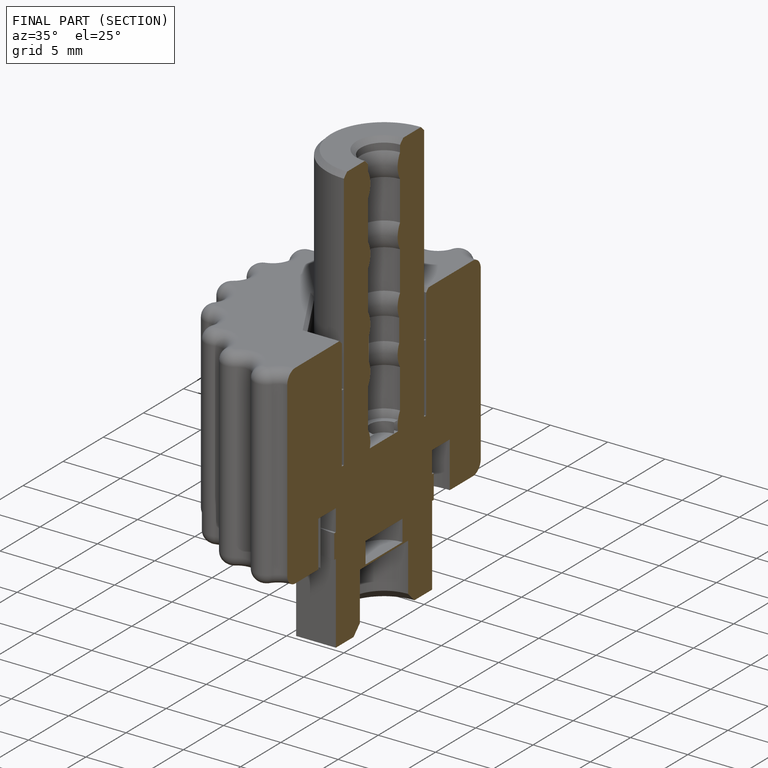
[diagram: finished part — half-section view (interior)]
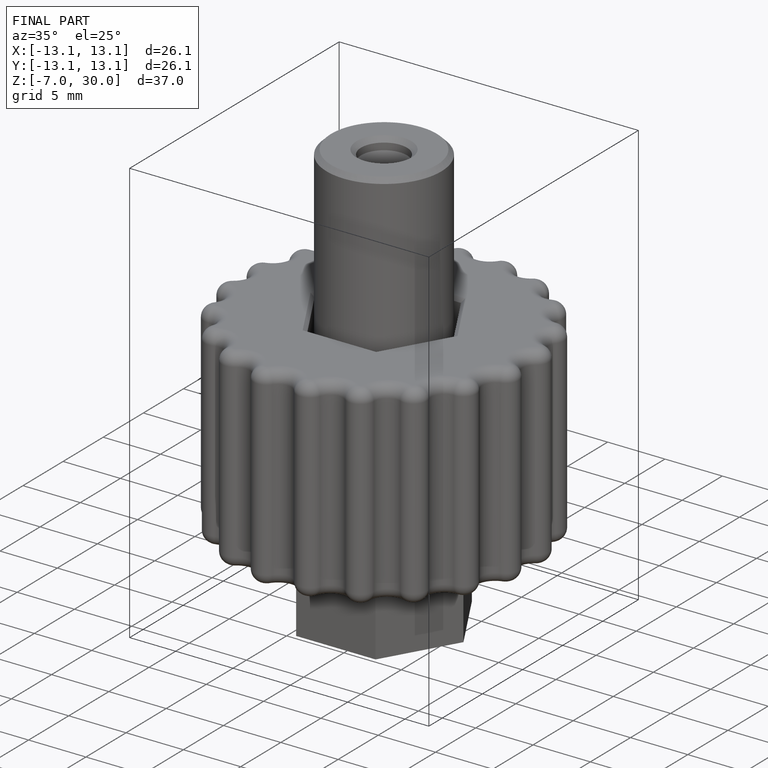
[diagram: finished part — iso view with bounding-box wireframe]
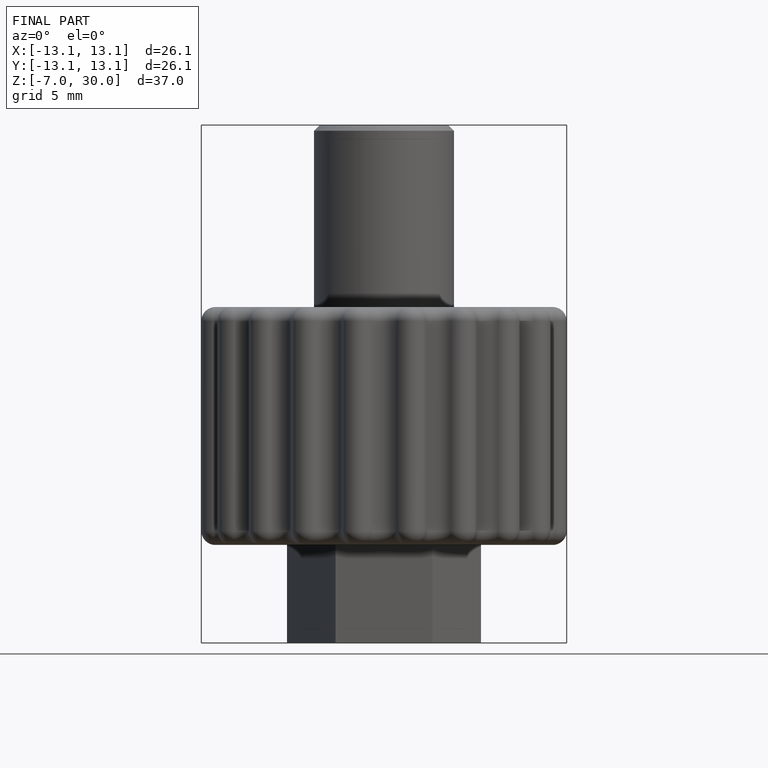
[diagram: finished part — front view with bounding-box wireframe]
